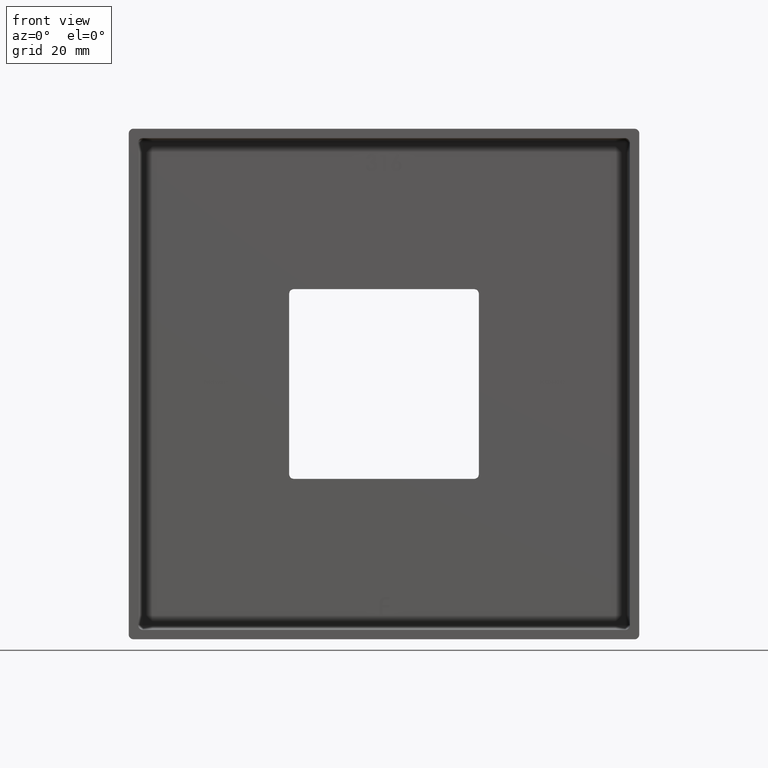
[diagram: clean part render]
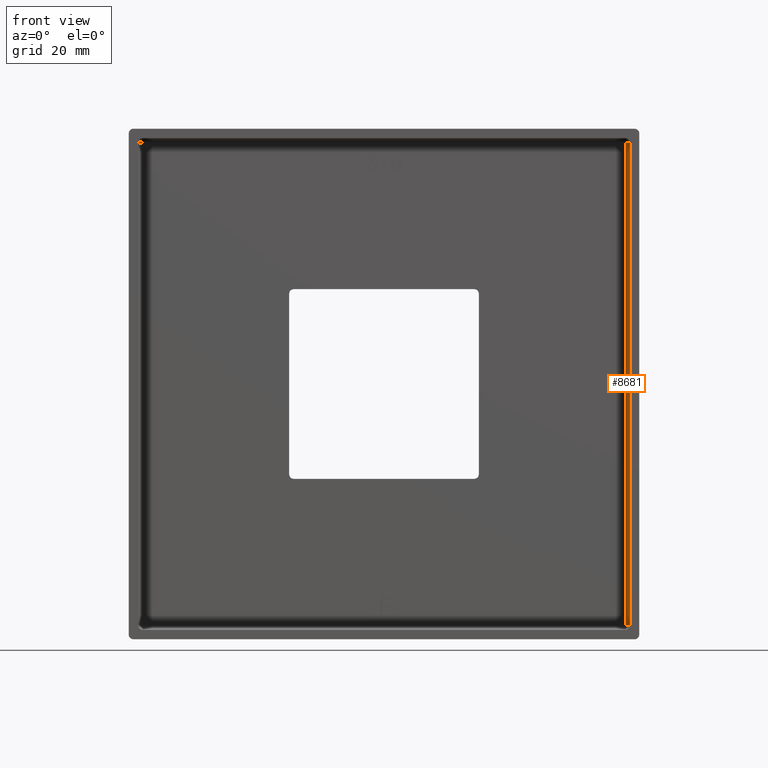
[diagram: same view with one face highlighted and labeled with its STEP entity id]
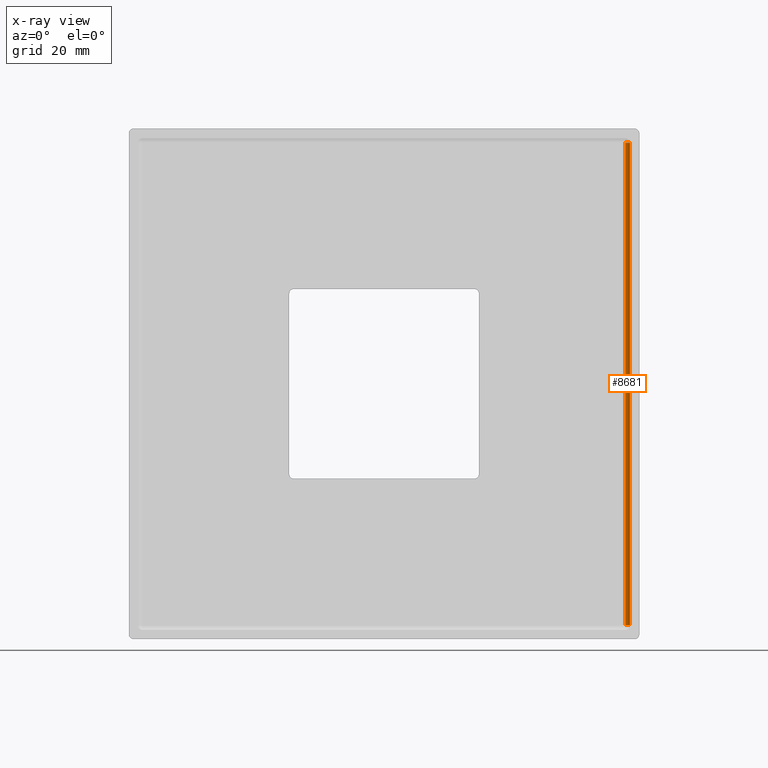
[diagram: x-ray of the same camera — body ghosted, the highlighted face saturated]
A machine part, front view. The second image highlights one B-rep face of the part: STEP entity #8681.
The next image is the same camera in x-ray: the body ghosted, the highlighted face saturated — about 0% of this face is hidden behind the body in this view.
In plain terms, the highlighted cylindrical surface (edge-blend (fillet) strip) has radius 1 mm, axis along (-0, 0, -1).
Its self-contained STEP definition (entity closure, byte-faithful):
#1422 = CYLINDRICAL_SURFACE ( 'NONE', #11023, 1.000000000000000888 ) ;
#1436 = EDGE_LOOP ( 'NONE', ( #13739, #16483, #4817, #3906 ) ) ;
#1472 = CARTESIAN_POINT ( 'NONE',  ( 51.49999999999998579, 22.00000000000000000, -51.50000000000000711 ) ) ;
#1695 = DIRECTION ( 'NONE',  ( -1.000000000000000000, 0.000000000000000000, 0.000000000000000000 ) ) ;
#1799 = CARTESIAN_POINT ( 'NONE',  ( 51.50000000000000000, 23.00000000000000000, -9.835404661960246365E-15 ) ) ;
#2008 = CIRCLE ( 'NONE', #3845, 1.000000000000000888 ) ;
#2111 = AXIS2_PLACEMENT_3D ( 'NONE', #1472, #10424, #2649 ) ;
#2649 = DIRECTION ( 'NONE',  ( 1.000000000000000000, 0.000000000000000000, 0.000000000000000000 ) ) ;
#2922 = DIRECTION ( 'NONE',  ( -1.000000000000000000, 0.000000000000000000, 0.000000000000000000 ) ) ;
#3745 = VERTEX_POINT ( 'NONE', #11490 ) ;
#3845 = AXIS2_PLACEMENT_3D ( 'NONE', #11867, #9258, #2922 ) ;
#3906 = ORIENTED_EDGE ( 'NONE', *, *, #4606, .F. ) ;
#3950 = EDGE_CURVE ( 'NONE', #10998, #7909, #7946, .T. ) ;
#4606 = EDGE_CURVE ( 'NONE', #5443, #10998, #15913, .T. ) ;
#4817 = ORIENTED_EDGE ( 'NONE', *, *, #3950, .F. ) ;
#5424 = LINE ( 'NONE', #1799, #16214 ) ;
#5443 = VERTEX_POINT ( 'NONE', #9627 ) ;
#6337 = CARTESIAN_POINT ( 'NONE',  ( 51.49999999999998579, 23.00000000000000000, -51.50000000000000711 ) ) ;
#6748 = CARTESIAN_POINT ( 'NONE',  ( 52.49999999999998579, 22.00000000000000000, -54.50000000000000711 ) ) ;
#6824 = DIRECTION ( 'NONE',  ( 1.909787313001989722E-16, -0.000000000000000000, 1.000000000000000000 ) ) ;
#7849 = FACE_OUTER_BOUND ( 'NONE', #1436, .T. ) ;
#7909 = VERTEX_POINT ( 'NONE', #6337 ) ;
#7946 = CIRCLE ( 'NONE', #2111, 1.000000000000000888 ) ;
#8001 = DIRECTION ( 'NONE',  ( -1.909787313001989722E-16, 0.000000000000000000, -1.000000000000000000 ) ) ;
#8094 = CARTESIAN_POINT ( 'NONE',  ( 51.49999999999998579, 22.00000000000000000, -54.50000000000000711 ) ) ;
#8408 = CARTESIAN_POINT ( 'NONE',  ( 52.49999999999998579, 22.00000000000000000, -51.50000000000000711 ) ) ;
#8681 = ADVANCED_FACE ( 'NONE', ( #7849 ), #1422, .F. ) ;
#9115 = EDGE_CURVE ( 'NONE', #7909, #3745, #5424, .T. ) ;
#9258 = DIRECTION ( 'NONE',  ( -0.000000000000000000, -0.000000000000000000, 1.000000000000000000 ) ) ;
#9627 = CARTESIAN_POINT ( 'NONE',  ( 52.50000000000000711, 22.00000000000000000, 51.49999999999999289 ) ) ;
#9981 = EDGE_CURVE ( 'NONE', #5443, #3745, #2008, .T. ) ;
#10318 = VECTOR ( 'NONE', #8001, 1000.000000000000000 ) ;
#10424 = DIRECTION ( 'NONE',  ( 0.000000000000000000, 0.000000000000000000, 1.000000000000000000 ) ) ;
#10998 = VERTEX_POINT ( 'NONE', #8408 ) ;
#11023 = AXIS2_PLACEMENT_3D ( 'NONE', #8094, #11989, #1695 ) ;
#11490 = CARTESIAN_POINT ( 'NONE',  ( 51.50000000000000711, 23.00000000000000000, 51.49999999999999289 ) ) ;
#11867 = CARTESIAN_POINT ( 'NONE',  ( 51.50000000000000711, 22.00000000000000000, 51.49999999999999289 ) ) ;
#11989 = DIRECTION ( 'NONE',  ( -1.909787313001989722E-16, 0.000000000000000000, -1.000000000000000000 ) ) ;
#13739 = ORIENTED_EDGE ( 'NONE', *, *, #9981, .T. ) ;
#15913 = LINE ( 'NONE', #6748, #10318 ) ;
#16214 = VECTOR ( 'NONE', #6824, 1000.000000000000000 ) ;
#16483 = ORIENTED_EDGE ( 'NONE', *, *, #9115, .F. ) ;